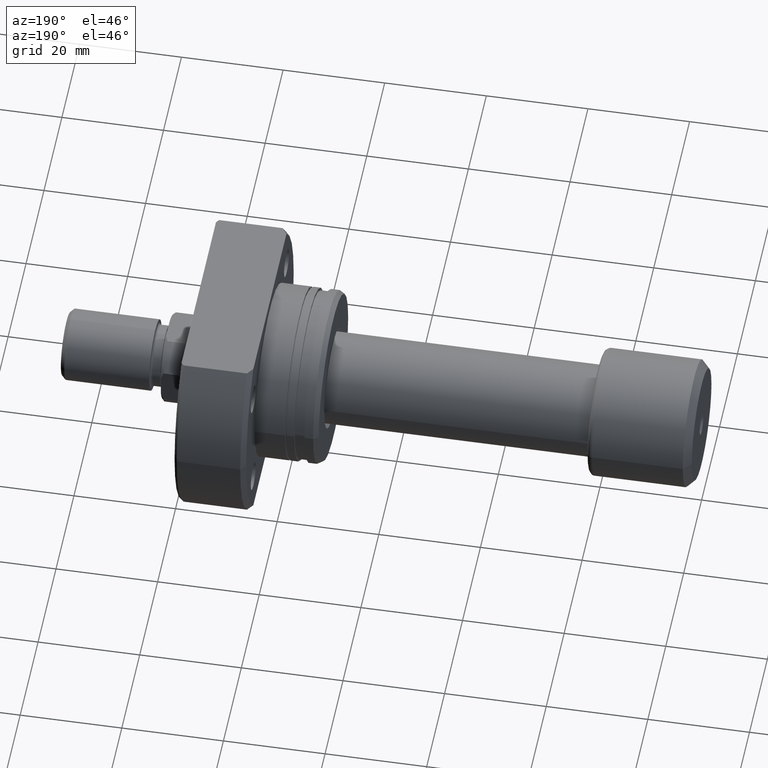
[diagram: clean part render]
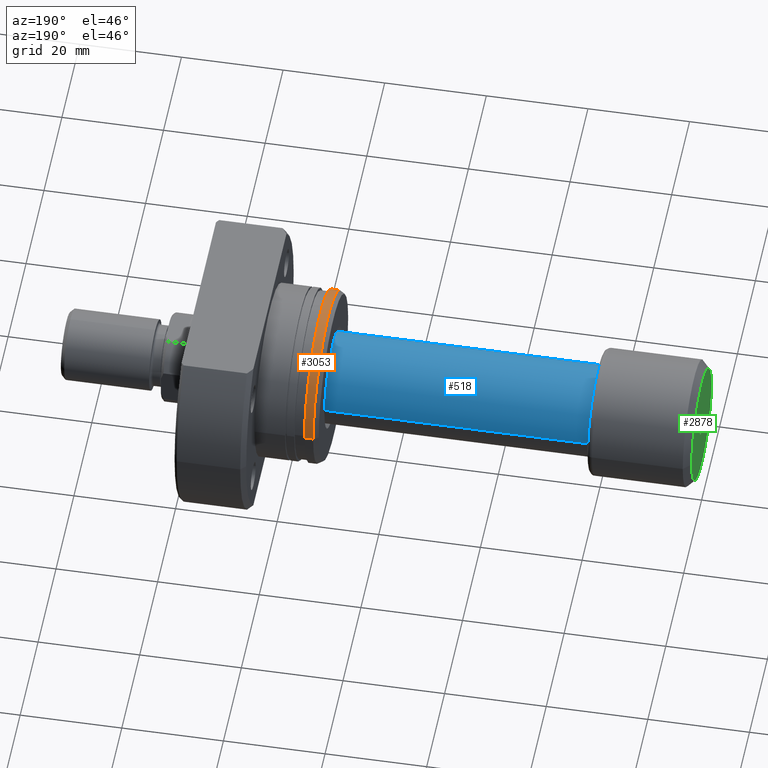
[diagram: same view with three faces highlighted in distinct colors, each labeled with its STEP entity id]
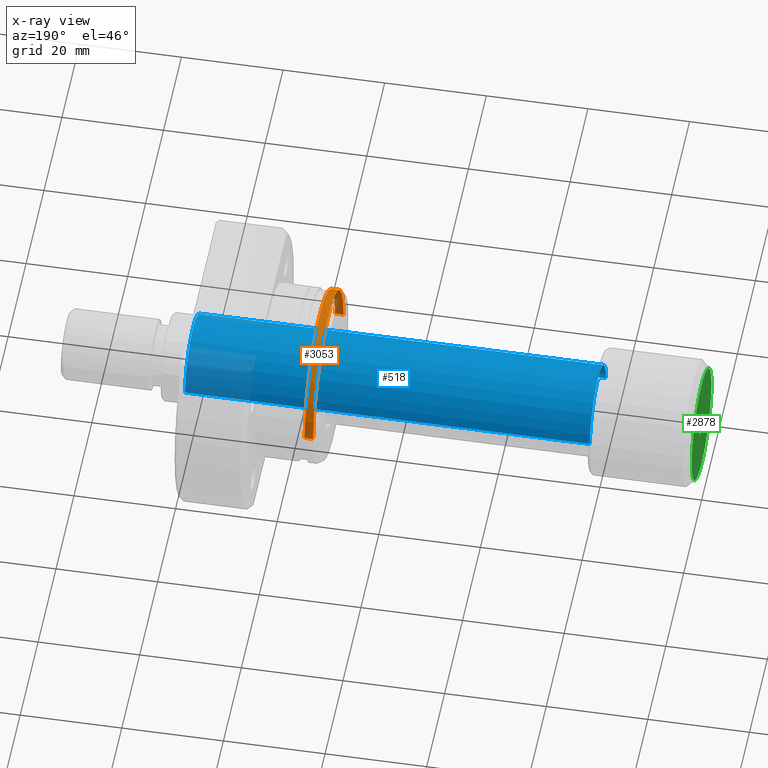
[diagram: x-ray of the same camera — body ghosted, the three highlighted faces saturated]
A machine part, auxiliary view with three faces highlighted in distinct colors.
The next image is the same camera in x-ray (body ghosted, the three faces saturated) — at least one of them is partly hidden behind the body in this view.
Their STEP definitions:

[orange] entity #3053 — the highlighted cylindrical surface (partial cylindrical patch) has radius 17 mm, axis along (1, 0, 0).
#188 = DIRECTION ( 'NONE',  ( -1.275531967630005461E-17, 1.000000000000000000, 0.000000000000000000 ) ) ;
#211 = VERTEX_POINT ( 'NONE', #1613 ) ;
#289 = ORIENTED_EDGE ( 'NONE', *, *, #3047, .T. ) ;
#443 = VECTOR ( 'NONE', #1338, 1000.000000000000000 ) ;
#642 = LINE ( 'NONE', #2925, #3419 ) ;
#645 = EDGE_LOOP ( 'NONE', ( #289, #1138, #3499, #1724 ) ) ;
#695 = CARTESIAN_POINT ( 'NONE',  ( 2.699999999999786127, -16.99999999999999645, 2.081899558550499885E-15 ) ) ;
#916 = EDGE_CURVE ( 'NONE', #211, #1670, #642, .T. ) ;
#987 = DIRECTION ( 'NONE',  ( 1.000000000000000000, 9.242617352055502386E-18, -0.000000000000000000 ) ) ;
#997 = VERTEX_POINT ( 'NONE', #3501 ) ;
#1026 = AXIS2_PLACEMENT_3D ( 'NONE', #3252, #987, #2145 ) ;
#1056 = CARTESIAN_POINT ( 'NONE',  ( 26.50000000000000711, 16.99999999999999645, 0.000000000000000000 ) ) ;
#1138 = ORIENTED_EDGE ( 'NONE', *, *, #916, .T. ) ;
#1284 = CARTESIAN_POINT ( 'NONE',  ( 26.50000000000000711, 2.449293598294708880E-16, 0.000000000000000000 ) ) ;
#1305 = FACE_OUTER_BOUND ( 'NONE', #645, .T. ) ;
#1338 = DIRECTION ( 'NONE',  ( 1.000000000000000000, 9.242617352055502386E-18, -0.000000000000000000 ) ) ;
#1461 = VERTEX_POINT ( 'NONE', #3399 ) ;
#1560 = DIRECTION ( 'NONE',  ( 1.000000000000000000, 9.242617352055502386E-18, -0.000000000000000000 ) ) ;
#1578 = AXIS2_PLACEMENT_3D ( 'NONE', #1284, #1560, #2442 ) ;
#1613 = CARTESIAN_POINT ( 'NONE',  ( 0.9999999999997859490, -16.99999999999999645, 2.081899558550499885E-15 ) ) ;
#1670 = VERTEX_POINT ( 'NONE', #695 ) ;
#1724 = ORIENTED_EDGE ( 'NONE', *, *, #3168, .F. ) ;
#2092 = DIRECTION ( 'NONE',  ( 1.000000000000000000, 9.242617352055502386E-18, -0.000000000000000000 ) ) ;
#2145 = DIRECTION ( 'NONE',  ( 0.000000000000000000, 1.000000000000000000, 0.000000000000000000 ) ) ;
#2307 = EDGE_CURVE ( 'NONE', #1461, #1670, #2713, .T. ) ;
#2442 = DIRECTION ( 'NONE',  ( 0.000000000000000000, 1.000000000000000000, 0.000000000000000000 ) ) ;
#2709 = DIRECTION ( 'NONE',  ( 1.000000000000000000, 9.242617352055502386E-18, -0.000000000000000000 ) ) ;
#2713 = CIRCLE ( 'NONE', #1026, 16.99999999999999645 ) ;
#2925 = CARTESIAN_POINT ( 'NONE',  ( 26.50000000000000711, -16.99999999999999645, 2.081899558550499885E-15 ) ) ;
#3023 = LINE ( 'NONE', #1056, #443 ) ;
#3036 = CYLINDRICAL_SURFACE ( 'NONE', #1578, 16.99999999999999645 ) ;
#3047 = EDGE_CURVE ( 'NONE', #997, #211, #3683, .T. ) ;
#3053 = ADVANCED_FACE ( 'NONE', ( #1305 ), #3036, .T. ) ;
#3065 = AXIS2_PLACEMENT_3D ( 'NONE', #3283, #2709, #188 ) ;
#3168 = EDGE_CURVE ( 'NONE', #997, #1461, #3023, .T. ) ;
#3252 = CARTESIAN_POINT ( 'NONE',  ( 2.699999999999786127, 2.495506685054785763E-17, 0.000000000000000000 ) ) ;
#3283 = CARTESIAN_POINT ( 'NONE',  ( 0.9999999999997857270, 9.242617352053524071E-18, 0.000000000000000000 ) ) ;
#3399 = CARTESIAN_POINT ( 'NONE',  ( 2.699999999999786127, 16.99999999999999645, 0.000000000000000000 ) ) ;
#3419 = VECTOR ( 'NONE', #2092, 1000.000000000000000 ) ;
#3499 = ORIENTED_EDGE ( 'NONE', *, *, #2307, .F. ) ;
#3501 = CARTESIAN_POINT ( 'NONE',  ( 0.9999999999997856159, 16.99999999999999645, 0.000000000000000000 ) ) ;
#3683 = CIRCLE ( 'NONE', #3065, 16.99999999999999645 ) ;

[blue] entity #518 — the highlighted cylindrical surface (partial cylindrical patch) has radius 9 mm, axis along (-1, -0, -0).
#16 = DIRECTION ( 'NONE',  ( 1.069542322069065955E-17, -1.000000000000000000, 0.000000000000000000 ) ) ;
#233 = DIRECTION ( 'NONE',  ( -1.000000000000000000, -1.069542322069065801E-17, -0.000000000000000000 ) ) ;
#476 = LINE ( 'NONE', #3342, #3050 ) ;
#483 = CIRCLE ( 'NONE', #2574, 9.000000000000000000 ) ;
#512 = DIRECTION ( 'NONE',  ( 0.000000000000000000, -1.000000000000000000, 0.000000000000000000 ) ) ;
#513 = VERTEX_POINT ( 'NONE', #1320 ) ;
#518 = ADVANCED_FACE ( 'NONE', ( #3362 ), #2516, .T. ) ;
#529 = CARTESIAN_POINT ( 'NONE',  ( 20.39999999999999503, -9.000000000000000000, 0.000000000000000000 ) ) ;
#563 = CARTESIAN_POINT ( 'NONE',  ( 100.0667575123237754, -9.000000000000191847, 0.000000000000000000 ) ) ;
#615 = CIRCLE ( 'NONE', #2714, 9.000000000000193623 ) ;
#652 = EDGE_CURVE ( 'NONE', #714, #1011, #483, .T. ) ;
#677 = EDGE_CURVE ( 'NONE', #513, #1011, #476, .T. ) ;
#714 = VERTEX_POINT ( 'NONE', #529 ) ;
#793 = DIRECTION ( 'NONE',  ( -1.000000000000000000, -1.069542322069065801E-17, -0.000000000000000000 ) ) ;
#1011 = VERTEX_POINT ( 'NONE', #3193 ) ;
#1195 = EDGE_CURVE ( 'NONE', #2821, #513, #615, .T. ) ;
#1307 = CARTESIAN_POINT ( 'NONE',  ( 20.39999999999999503, 2.181866337020893623E-16, 0.000000000000000000 ) ) ;
#1320 = CARTESIAN_POINT ( 'NONE',  ( 100.0667575123237754, 9.000000000000195399, 1.102182119232641577E-15 ) ) ;
#1629 = AXIS2_PLACEMENT_3D ( 'NONE', #3674, #2870, #16 ) ;
#1690 = VECTOR ( 'NONE', #793, 1000.000000000000000 ) ;
#1906 = DIRECTION ( 'NONE',  ( -1.000000000000000000, -1.069542322069065801E-17, -0.000000000000000000 ) ) ;
#2301 = ORIENTED_EDGE ( 'NONE', *, *, #652, .F. ) ;
#2386 = EDGE_CURVE ( 'NONE', #2821, #714, #2809, .T. ) ;
#2440 = ORIENTED_EDGE ( 'NONE', *, *, #2386, .F. ) ;
#2516 = CYLINDRICAL_SURFACE ( 'NONE', #1629, 9.000000000000095923 ) ;
#2574 = AXIS2_PLACEMENT_3D ( 'NONE', #1307, #2771, #512 ) ;
#2714 = AXIS2_PLACEMENT_3D ( 'NONE', #3368, #1906, #3417 ) ;
#2771 = DIRECTION ( 'NONE',  ( -1.000000000000000000, -1.069542322069065801E-17, -0.000000000000000000 ) ) ;
#2794 = CARTESIAN_POINT ( 'NONE',  ( 9.625880898621695591E-17, -9.000000000000095923, 0.000000000000000000 ) ) ;
#2809 = LINE ( 'NONE', #2794, #1690 ) ;
#2821 = VERTEX_POINT ( 'NONE', #563 ) ;
#2870 = DIRECTION ( 'NONE',  ( -1.000000000000000000, -1.069542322069065801E-17, -0.000000000000000000 ) ) ;
#2911 = ORIENTED_EDGE ( 'NONE', *, *, #1195, .T. ) ;
#3050 = VECTOR ( 'NONE', #233, 1000.000000000000000 ) ;
#3062 = ORIENTED_EDGE ( 'NONE', *, *, #677, .T. ) ;
#3193 = CARTESIAN_POINT ( 'NONE',  ( 20.39999999999999503, 9.000000000000000000, 1.102182119232623630E-15 ) ) ;
#3342 = CARTESIAN_POINT ( 'NONE',  ( -9.625880898621695591E-17, 9.000000000000095923, 1.102182119232629744E-15 ) ) ;
#3362 = FACE_OUTER_BOUND ( 'NONE', #3679, .T. ) ;
#3368 = CARTESIAN_POINT ( 'NONE',  ( 100.0667575123237754, 1.070256321916529121E-15, 0.000000000000000000 ) ) ;
#3417 = DIRECTION ( 'NONE',  ( 0.000000000000000000, -1.000000000000000000, 0.000000000000000000 ) ) ;
#3674 = CARTESIAN_POINT ( 'NONE',  ( 0.000000000000000000, 0.000000000000000000, 0.000000000000000000 ) ) ;
#3679 = EDGE_LOOP ( 'NONE', ( #2911, #3062, #2301, #2440 ) ) ;

[green] entity #2878 — the highlighted planar face has unit normal (-1, -0, 0).
#44 = DIRECTION ( 'NONE',  ( 1.069542322069065647E-17, -1.000000000000000000, 0.000000000000000000 ) ) ;
#142 = DIRECTION ( 'NONE',  ( -1.000000000000000000, -1.069542322069065801E-17, -0.000000000000000000 ) ) ;
#166 = AXIS2_PLACEMENT_3D ( 'NONE', #1983, #842, #44 ) ;
#327 = AXIS2_PLACEMENT_3D ( 'NONE', #3651, #539, #1437 ) ;
#338 = DIRECTION ( 'NONE',  ( 1.069542322069065801E-17, -1.000000000000000000, 0.000000000000000000 ) ) ;
#360 = EDGE_CURVE ( 'NONE', #475, #742, #1074, .T. ) ;
#455 = CARTESIAN_POINT ( 'NONE',  ( 1.229461823634491368E-15, 1.314961453745302249E-32, 0.000000000000000000 ) ) ;
#475 = VERTEX_POINT ( 'NONE', #3516 ) ;
#539 = DIRECTION ( 'NONE',  ( 1.000000000000000000, 1.069542322069065801E-17, 0.000000000000000000 ) ) ;
#576 = DIRECTION ( 'NONE',  ( 1.069542322069066263E-17, -1.000000000000000000, 0.000000000000000000 ) ) ;
#604 = VERTEX_POINT ( 'NONE', #2587 ) ;
#619 = CIRCLE ( 'NONE', #327, 2.075000000000007283 ) ;
#646 = FACE_OUTER_BOUND ( 'NONE', #3076, .T. ) ;
#742 = VERTEX_POINT ( 'NONE', #854 ) ;
#842 = DIRECTION ( 'NONE',  ( -1.000000000000000000, -1.069542322069065801E-17, -0.000000000000000000 ) ) ;
#854 = CARTESIAN_POINT ( 'NONE',  ( 6.147309118172456842E-16, 2.541142108230766946E-16, -2.075000000000007283 ) ) ;
#1074 = CIRCLE ( 'NONE', #2108, 2.075000000000007283 ) ;
#1087 = ORIENTED_EDGE ( 'NONE', *, *, #2806, .T. ) ;
#1169 = VERTEX_POINT ( 'NONE', #3279 ) ;
#1191 = FACE_BOUND ( 'NONE', #1831, .T. ) ;
#1280 = AXIS2_PLACEMENT_3D ( 'NONE', #455, #142, #1615 ) ;
#1437 = DIRECTION ( 'NONE',  ( 1.069542322069066263E-17, -1.000000000000000000, 0.000000000000000000 ) ) ;
#1512 = CIRCLE ( 'NONE', #1280, 11.00000000000000178 ) ;
#1615 = DIRECTION ( 'NONE',  ( 1.069542322069065647E-17, -1.000000000000000000, 0.000000000000000000 ) ) ;
#1753 = DIRECTION ( 'NONE',  ( -1.000000000000000000, -1.069542322069065801E-17, 0.000000000000000000 ) ) ;
#1774 = PLANE ( 'NONE',  #3242 ) ;
#1831 = EDGE_LOOP ( 'NONE', ( #2247, #3066 ) ) ;
#1861 = ORIENTED_EDGE ( 'NONE', *, *, #3600, .T. ) ;
#1983 = CARTESIAN_POINT ( 'NONE',  ( 1.229461823634491368E-15, 1.314961453745302249E-32, 0.000000000000000000 ) ) ;
#2002 = CARTESIAN_POINT ( 'NONE',  ( 6.147309118172456842E-16, 0.000000000000000000, 0.000000000000000000 ) ) ;
#2108 = AXIS2_PLACEMENT_3D ( 'NONE', #2002, #2634, #576 ) ;
#2247 = ORIENTED_EDGE ( 'NONE', *, *, #360, .T. ) ;
#2337 = CARTESIAN_POINT ( 'NONE',  ( 6.147309118172456842E-16, 6.574807268726511244E-33, 0.000000000000000000 ) ) ;
#2587 = CARTESIAN_POINT ( 'NONE',  ( 1.347111479062088602E-15, -11.00000000000000178, 1.438959988998140160E-15 ) ) ;
#2634 = DIRECTION ( 'NONE',  ( 1.000000000000000000, 1.069542322069065801E-17, 0.000000000000000000 ) ) ;
#2795 = EDGE_CURVE ( 'NONE', #742, #475, #619, .T. ) ;
#2806 = EDGE_CURVE ( 'NONE', #604, #1169, #2947, .T. ) ;
#2878 = ADVANCED_FACE ( 'NONE', ( #1191, #646 ), #1774, .T. ) ;
#2947 = CIRCLE ( 'NONE', #166, 11.00000000000000178 ) ;
#3066 = ORIENTED_EDGE ( 'NONE', *, *, #2795, .T. ) ;
#3076 = EDGE_LOOP ( 'NONE', ( #1861, #1087 ) ) ;
#3242 = AXIS2_PLACEMENT_3D ( 'NONE', #2337, #1753, #338 ) ;
#3279 = CARTESIAN_POINT ( 'NONE',  ( 1.111812168206894135E-15, 11.00000000000000178, 0.000000000000000000 ) ) ;
#3516 = CARTESIAN_POINT ( 'NONE',  ( 6.147309118172456842E-16, 0.000000000000000000, 2.075000000000007283 ) ) ;
#3600 = EDGE_CURVE ( 'NONE', #1169, #604, #1512, .T. ) ;
#3651 = CARTESIAN_POINT ( 'NONE',  ( 6.147309118172456842E-16, 0.000000000000000000, 0.000000000000000000 ) ) ;